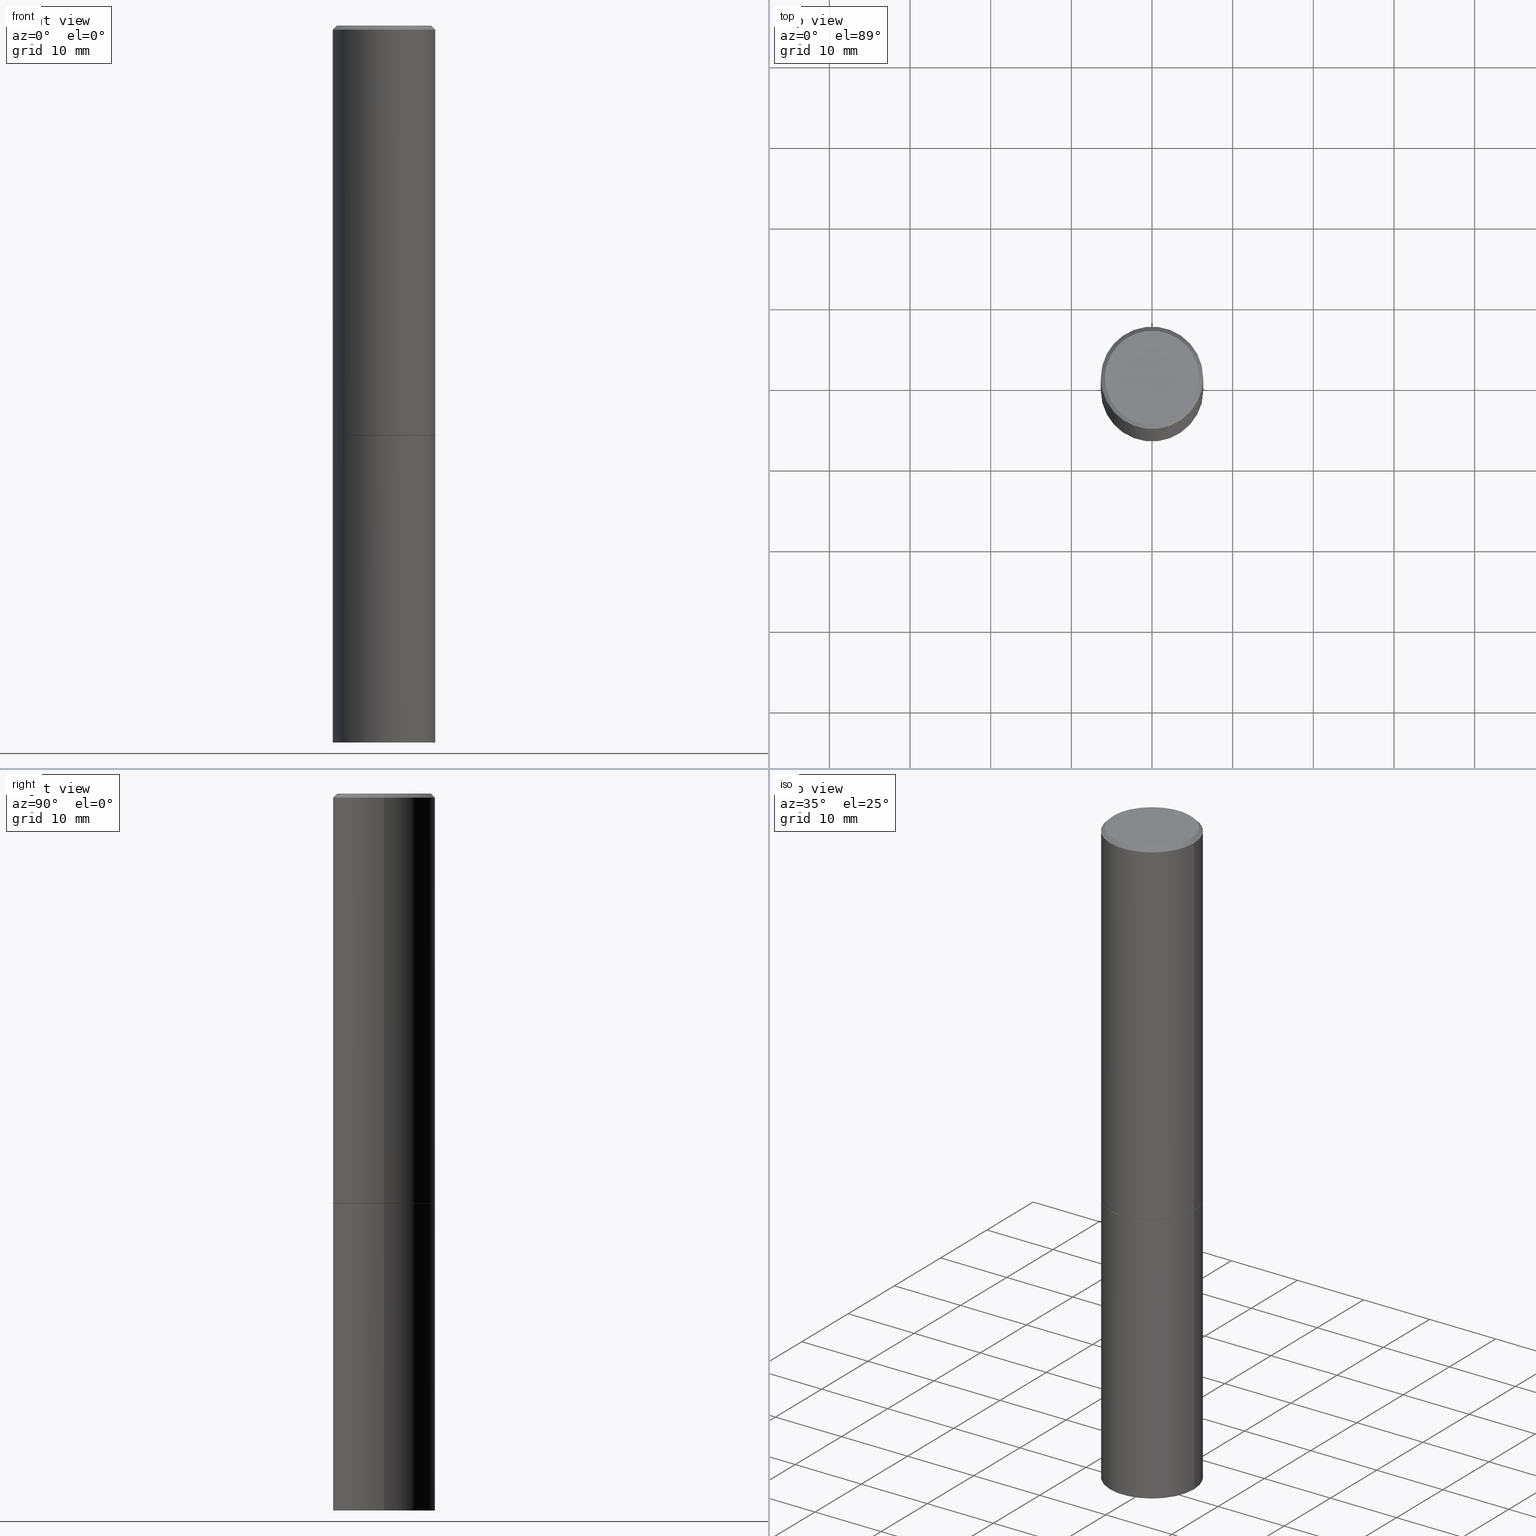
[diagram: canonical four-view strip — front | top / right | iso, engineering-drawing reading convention]
A machine part, canonical four-view strip (front | top / right | iso — engineering-drawing reading convention). The complete STEP part file that produces these views, byte-faithful:
ISO-10303-21;
HEADER;
FILE_DESCRIPTION (( 'STEP AP203' ),
    '1' );
FILE_NAME ('77186.STEP',
    '2024-02-29T15:58:51',
    ( '' ),
    ( '' ),
    'SwSTEP 2.0',
    'SolidWorks 2023',
    '' );
FILE_SCHEMA (( 'CONFIG_CONTROL_DESIGN' ));
ENDSEC;

DATA;
#1 = CC_DESIGN_PERSON_AND_ORGANIZATION_ASSIGNMENT ( #333, #346, ( #242 ) ) ;
#2 = UNCERTAINTY_MEASURE_WITH_UNIT (LENGTH_MEASURE( 1.000000000000000082E-05 ), #115, 'distance_accuracy_value', 'NONE');
#3 = EDGE_CURVE ( 'NONE', #189, #167, #10, .T. ) ;
#4 = DIRECTION ( 'NONE',  ( 1.000000000000000000, -6.982962677686266711E-15, 4.876176775795935793E-29 ) ) ;
#5 = ORIENTED_EDGE ( 'NONE', *, *, #41, .F. ) ;
#6 = ADVANCED_BREP_SHAPE_REPRESENTATION ( '77186', ( #78, #201, #323 ), #145 ) ;
#7 = CARTESIAN_POINT ( 'NONE',  ( 8.559140821647976968E-29, -1.222018468595100934E-14, -3.500000000000000000 ) ) ;
#8 = ORIENTED_EDGE ( 'NONE', *, *, #98, .T. ) ;
#9 = CARTESIAN_POINT ( 'NONE',  ( 4.890937612370272633E-29, -6.982962677686290376E-15, -1.999999999999999778 ) ) ;
#10 = LINE ( 'NONE', #275, #133 ) ;
#11 = CARTESIAN_POINT ( 'NONE',  ( 4.890937612370272633E-29, -6.982962677686290376E-15, -1.999999999999999778 ) ) ;
#12 = DIRECTION ( 'NONE',  ( -2.445468806185136597E-29, 3.491481338843145583E-15, 1.000000000000000000 ) ) ;
#13 = ADVANCED_FACE ( 'NONE', ( #319 ), #65, .T. ) ;
#14 = DIRECTION ( 'NONE',  ( -2.445468806185136877E-29, 3.491481338843145188E-15, 1.000000000000000000 ) ) ;
#15 = DIRECTION ( 'NONE',  ( -2.445468806185136597E-29, 3.491481338843145583E-15, 1.000000000000000000 ) ) ;
#16 = CARTESIAN_POINT ( 'NONE',  ( -0.2489999999999999991, -5.213711265643640920E-15, -1.999999999999999778 ) ) ;
#17 = PERSON_AND_ORGANIZATION ( #146, #135 ) ;
#18 = APPROVAL_PERSON_ORGANIZATION ( #112, #302, #200 ) ;
#19 = VERTEX_POINT ( 'NONE', #163 ) ;
#20 = PERSON_AND_ORGANIZATION_ROLE ( 'design_supplier' ) ;
#21 = DIRECTION ( 'NONE',  ( -2.445468806185136597E-29, 3.491481338843145583E-15, 1.000000000000000000 ) ) ;
#22 = EDGE_LOOP ( 'NONE', ( #104, #274, #108, #306 ) ) ;
#23 = LINE ( 'NONE', #105, #312 ) ;
#24 = APPROVAL_DATE_TIME ( #58, #302 ) ;
#25 = VECTOR ( 'NONE', #335, 39.37007874015748143 ) ;
#26 = DIRECTION ( 'NONE',  ( 0.000000000000000000, 0.000000000000000000, 1.000000000000000000 ) ) ;
#27 = CALENDAR_DATE ( 2024, 29, 2 ) ;
#28 = CARTESIAN_POINT ( 'NONE',  ( 0.2499999999999998057, -1.784954126219744611E-15, -0.02000000000000005593 ) ) ;
#29 = EDGE_LOOP ( 'NONE', ( #193, #290 ) ) ;
#30 = PERSON_AND_ORGANIZATION ( #146, #135 ) ;
#31 = SECURITY_CLASSIFICATION_LEVEL ( 'unclassified' ) ;
#32 = APPROVAL_ROLE ( '' ) ;
#33 = CIRCLE ( 'NONE', #347, 0.2500000000000000000 ) ;
#34 = APPROVAL_DATE_TIME ( #224, #248 ) ;
#35 = DIRECTION ( 'NONE',  ( 1.000000000000000000, -6.982962677686266711E-15, 4.876176775795935793E-29 ) ) ;
#36 = AXIS2_PLACEMENT_3D ( 'NONE', #365, #113, #338 ) ;
#37 = CARTESIAN_POINT ( 'NONE',  ( 4.890937612370287172E-31, -6.982962677686310098E-17, -0.02000000000000005593 ) ) ;
#38 = EDGE_CURVE ( 'NONE', #342, #194, #277, .T. ) ;
#39 = CALENDAR_DATE ( 2024, 29, 2 ) ;
#40 = CARTESIAN_POINT ( 'NONE',  ( 4.888492143564087591E-29, -6.979471196347447369E-15, -1.998999999999999888 ) ) ;
#41 = EDGE_CURVE ( 'NONE', #210, #194, #247, .T. ) ;
#42 = FACE_OUTER_BOUND ( 'NONE', #29, .T. ) ;
#43 = CARTESIAN_POINT ( 'NONE',  ( 4.890937612370287172E-31, -6.982962677686310098E-17, -0.02000000000000005593 ) ) ;
#44 = CIRCLE ( 'NONE', #159, 0.2299999999999997324 ) ;
#45 = CYLINDRICAL_SURFACE ( 'NONE', #263, 0.2500000000000000000 ) ;
#46 = DIRECTION ( 'NONE',  ( 1.000000000000000000, -6.982962677686266711E-15, 0.000000000000000000 ) ) ;
#47 = ADVANCED_FACE ( 'NONE', ( #42 ), #77, .F. ) ;
#48 = VECTOR ( 'NONE', #151, 39.37007874015748854 ) ;
#49 = DIRECTION ( 'NONE',  ( 1.000000000000000000, -6.982962677686266711E-15, 0.000000000000000000 ) ) ;
#50 = ORIENTED_EDGE ( 'NONE', *, *, #69, .T. ) ;
#51 = AXIS2_PLACEMENT_3D ( 'NONE', #101, #76, #46 ) ;
#52 = FACE_OUTER_BOUND ( 'NONE', #324, .T. ) ;
#53 = VERTEX_POINT ( 'NONE', #82 ) ;
#54 = CONICAL_SURFACE ( 'NONE', #281, 0.2499999999999998057, 0.7853981633974482790 ) ;
#55 = PERSON_AND_ORGANIZATION ( #146, #135 ) ;
#56 = ORIENTED_EDGE ( 'NONE', *, *, #336, .F. ) ;
#57 = DATE_AND_TIME ( #205, #225 ) ;
#58 = DATE_AND_TIME ( #27, #293 ) ;
#59 = DIRECTION ( 'NONE',  ( -2.445468806185136597E-29, 3.491481338843145583E-15, 1.000000000000000000 ) ) ;
#60 = APPROVAL_STATUS ( 'not_yet_approved' ) ;
#61 = VERTEX_POINT ( 'NONE', #118 ) ;
#62 = ADVANCED_FACE ( 'NONE', ( #289 ), #234, .T. ) ;
#63 = ORIENTED_EDGE ( 'NONE', *, *, #161, .T. ) ;
#64 = DIRECTION ( 'NONE',  ( -2.445468806185136597E-29, 3.491481338843145583E-15, 1.000000000000000000 ) ) ;
#65 = PLANE ( 'NONE',  #170 ) ;
#66 = EDGE_CURVE ( 'NONE', #19, #342, #284, .T. ) ;
#67 = LOCAL_TIME ( 10, 58, 51.00000000000000000, #288 ) ;
#68 = CARTESIAN_POINT ( 'NONE',  ( -0.2500000000000000000, -1.748293572161903489E-15, -1.998999999999999888 ) ) ;
#69 = EDGE_CURVE ( 'NONE', #240, #53, #154, .T. ) ;
#70 = CARTESIAN_POINT ( 'NONE',  ( -1.043851414335219820E-46, 1.490343170380447200E-32, 4.268512490100411279E-18 ) ) ;
#71 = CARTESIAN_POINT ( 'NONE',  ( 4.890937612370287172E-31, -6.982962677686310098E-17, -0.02000000000000005593 ) ) ;
#72 = CARTESIAN_POINT ( 'NONE',  ( -0.2499999999999998057, 1.675911042644702196E-15, -0.02000000000000005593 ) ) ;
#73 = VECTOR ( 'NONE', #14, 39.37007874015748143 ) ;
#74 = DIRECTION ( 'NONE',  ( 1.000000000000000000, -6.982962677686265922E-15, 4.876176775795935793E-29 ) ) ;
#75 = APPLICATION_CONTEXT ( 'configuration controlled 3d designs of mechanical parts and assemblies' ) ;
#76 = DIRECTION ( 'NONE',  ( -2.445468806185136597E-29, 3.491481338843145583E-15, 1.000000000000000000 ) ) ;
#77 = PLANE ( 'NONE',  #208 ) ;
#78 = MANIFOLD_SOLID_BREP ( 'Body-Move/Copy2[1]', #94 ) ;
#79 = ADVANCED_FACE ( 'NONE', ( #327 ), #54, .T. ) ;
#80 = DIRECTION ( 'NONE',  ( -2.445468806185136877E-29, 3.491481338843145188E-15, 1.000000000000000000 ) ) ;
#81 = PLANE ( 'NONE',  #36 ) ;
#82 = CARTESIAN_POINT ( 'NONE',  ( 0.2500000000000000000, -8.728703347107857054E-15, -2.000000000000000000 ) ) ;
#83 = COORDINATED_UNIVERSAL_TIME_OFFSET ( 5, 0, .BEHIND. ) ;
#84 = CARTESIAN_POINT ( 'NONE',  ( 4.890937612370272633E-29, -6.982962677686290376E-15, -1.999999999999999778 ) ) ;
#85 = AXIS2_PLACEMENT_3D ( 'NONE', #276, #59, #282 ) ;
#86 =( LENGTH_UNIT ( ) NAMED_UNIT ( * ) SI_UNIT ( $, .METRE. ) );
#87 = ORIENTED_EDGE ( 'NONE', *, *, #257, .T. ) ;
#88 = ORIENTED_EDGE ( 'NONE', *, *, #107, .T. ) ;
#89 = CIRCLE ( 'NONE', #51, 0.2500000000000000000 ) ;
#90 = ORIENTED_EDGE ( 'NONE', *, *, #298, .T. ) ;
#91 = FACE_OUTER_BOUND ( 'NONE', #348, .T. ) ;
#92 = EDGE_LOOP ( 'NONE', ( #103, #157 ) ) ;
#93 = DIRECTION ( 'NONE',  ( -2.445468806185136597E-29, 3.491481338843145583E-15, 1.000000000000000000 ) ) ;
#94 = CLOSED_SHELL ( 'NONE', ( #62, #13, #308, #128 ) ) ;
#95 = DIRECTION ( 'NONE',  ( 2.438088387897960049E-29, -3.491481338843145188E-15, -1.000000000000000000 ) ) ;
#96 = CIRCLE ( 'NONE', #202, 0.2499999999999998057 ) ;
#97 = FACE_OUTER_BOUND ( 'NONE', #213, .T. ) ;
#98 = EDGE_CURVE ( 'NONE', #240, #189, #33, .T. ) ;
#99 = DIRECTION ( 'NONE',  ( -2.445468806185136597E-29, 3.491481338843145583E-15, 1.000000000000000000 ) ) ;
#100 = CARTESIAN_POINT ( 'NONE',  ( 4.888492143564087591E-29, -6.979471196347447369E-15, -1.998999999999999888 ) ) ;
#101 = CARTESIAN_POINT ( 'NONE',  ( 4.890937612370273194E-29, -6.982962677686291165E-15, -2.000000000000000000 ) ) ;
#102 = CONICAL_SURFACE ( 'NONE', #140, 0.2489999999999999991, 0.7853981633975507526 ) ;
#103 = ORIENTED_EDGE ( 'NONE', *, *, #107, .F. ) ;
#104 = ORIENTED_EDGE ( 'NONE', *, *, #199, .T. ) ;
#105 = CARTESIAN_POINT ( 'NONE',  ( 0.2499999999999998890, -1.745740669421565889E-15, 1.219044193948983388E-29 ) ) ;
#106 = ORIENTED_EDGE ( 'NONE', *, *, #257, .F. ) ;
#107 = EDGE_CURVE ( 'NONE', #125, #61, #171, .T. ) ;
#108 = ORIENTED_EDGE ( 'NONE', *, *, #38, .F. ) ;
#109 = EDGE_CURVE ( 'NONE', #210, #236, #116, .T. ) ;
#110 = CARTESIAN_POINT ( 'NONE',  ( -0.2299999999999997324, 1.640996229256270744E-15, 4.268512490089056766E-18 ) ) ;
#111 = DIRECTION ( 'NONE',  ( 2.438088387897960049E-29, -3.491481338843145188E-15, -1.000000000000000000 ) ) ;
#112 = PERSON_AND_ORGANIZATION ( #146, #135 ) ;
#113 = DIRECTION ( 'NONE',  ( 2.438088387897960049E-29, -3.491481338843145188E-15, -1.000000000000000000 ) ) ;
#114 = DATE_TIME_ROLE ( 'classification_date' ) ;
#115 =( CONVERSION_BASED_UNIT ( 'INCH', #260 ) LENGTH_UNIT ( ) NAMED_UNIT ( #322 ) );
#116 = CIRCLE ( 'NONE', #188, 0.2500000000000000000 ) ;
#117 = ORIENTED_EDGE ( 'NONE', *, *, #317, .T. ) ;
#118 = CARTESIAN_POINT ( 'NONE',  ( -0.2489999999999999991, -5.208412811295418518E-15, -1.999999999999999778 ) ) ;
#119 = DIRECTION ( 'NONE',  ( 1.000000000000000000, 0.000000000000000000, 0.000000000000000000 ) ) ;
#120 = ORIENTED_EDGE ( 'NONE', *, *, #141, .F. ) ;
#121 = EDGE_CURVE ( 'NONE', #303, #194, #191, .T. ) ;
#122 = PERSON_AND_ORGANIZATION_ROLE ( 'creator' ) ;
#123 = CC_DESIGN_PERSON_AND_ORGANIZATION_ASSIGNMENT ( #314, #122, ( #265 ) ) ;
#124 = CLOSED_SHELL ( 'NONE', ( #206, #155, #79, #216, #192, #256, #239, #47 ) ) ;
#125 = VERTEX_POINT ( 'NONE', #211 ) ;
#126 = AXIS2_PLACEMENT_3D ( 'NONE', #299, #330, #74 ) ;
#127 = DIRECTION ( 'NONE',  ( -2.445468806185136597E-29, 3.491481338843145583E-15, 1.000000000000000000 ) ) ;
#128 = ADVANCED_FACE ( 'NONE', ( #91 ), #45, .T. ) ;
#129 = CARTESIAN_POINT ( 'NONE',  ( 8.559140821647976968E-29, -1.222018468595100934E-14, -3.500000000000000000 ) ) ;
#130 = CARTESIAN_POINT ( 'NONE',  ( 1.745740669421652072E-15, 0.2499999999999877598, -3.500000000000000888 ) ) ;
#131 = APPLICATION_CONTEXT ( 'configuration controlled 3d designs of mechanical parts and assemblies' ) ;
#132 = CARTESIAN_POINT ( 'NONE',  ( -0.2499999999999998057, 1.675911042644702196E-15, -0.02000000000000005593 ) ) ;
#133 = VECTOR ( 'NONE', #250, 39.37007874015748143 ) ;
#134 = DIRECTION ( 'NONE',  ( 1.000000000000000000, -6.982962677686266711E-15, 0.000000000000000000 ) ) ;
#135 = ORGANIZATION ( 'UNSPECIFIED', 'UNSPECIFIED', '' ) ;
#136 = DIRECTION ( 'NONE',  ( 1.000000000000000000, -6.982962677686266711E-15, 4.876176775795935793E-29 ) ) ;
#137 = DIRECTION ( 'NONE',  ( -2.445468806185136597E-29, 3.491481338843145583E-15, 1.000000000000000000 ) ) ;
#138 = CARTESIAN_POINT ( 'NONE',  ( -1.043851414335219820E-46, 1.490343170380447200E-32, 4.268512490100411279E-18 ) ) ;
#139 = AXIS2_PLACEMENT_3D ( 'NONE', #7, #137, #220 ) ;
#140 = AXIS2_PLACEMENT_3D ( 'NONE', #84, #143, #310 ) ;
#141 = EDGE_CURVE ( 'NONE', #194, #342, #96, .T. ) ;
#142 = FACE_OUTER_BOUND ( 'NONE', #182, .T. ) ;
#143 = DIRECTION ( 'NONE',  ( -2.445468806185136597E-29, 3.491481338843145583E-15, 1.000000000000000000 ) ) ;
#144 = ORIENTED_EDGE ( 'NONE', *, *, #161, .F. ) ;
#145 =( GEOMETRIC_REPRESENTATION_CONTEXT ( 3 ) GLOBAL_UNCERTAINTY_ASSIGNED_CONTEXT ( ( #2 ) ) GLOBAL_UNIT_ASSIGNED_CONTEXT ( ( #115, #232, #267 ) ) REPRESENTATION_CONTEXT ( 'NONE', 'WORKASPACE' ) );
#146 = PERSON ( 'UNSPECIFIED', 'UNSPECIFIED', 'UNSPECIFIED', ('UNSPECIFIED'), ('UNSPECIFIED'), ('UNSPECIFIED') ) ;
#147 = PERSON_AND_ORGANIZATION_ROLE ( 'design_owner' ) ;
#148 = ORIENTED_EDGE ( 'NONE', *, *, #245, .T. ) ;
#149 = SHAPE_DEFINITION_REPRESENTATION ( #270, #6 ) ;
#150 = APPROVAL_STATUS ( 'not_yet_approved' ) ;
#151 = DIRECTION ( 'NONE',  ( 0.7071067811865474617, -7.319954787623256045E-15, -0.7071067811865474617 ) ) ;
#152 = CALENDAR_DATE ( 2024, 29, 2 ) ;
#153 = EDGE_LOOP ( 'NONE', ( #8, #173, #174, #197 ) ) ;
#154 = LINE ( 'NONE', #237, #73 ) ;
#155 = ADVANCED_FACE ( 'NONE', ( #355 ), #292, .T. ) ;
#156 = DATE_TIME_ROLE ( 'creation_date' ) ;
#157 = ORIENTED_EDGE ( 'NONE', *, *, #298, .F. ) ;
#158 = AXIS2_PLACEMENT_3D ( 'NONE', #70, #93, #244 ) ;
#159 = AXIS2_PLACEMENT_3D ( 'NONE', #138, #253, #358 ) ;
#160 = CARTESIAN_POINT ( 'NONE',  ( -0.2500000000000000000, -7.825216842418399394E-15, -3.500000000000000000 ) ) ;
#161 = EDGE_CURVE ( 'NONE', #189, #240, #223, .T. ) ;
#162 = CARTESIAN_POINT ( 'NONE',  ( 0.000000000000000000, 0.000000000000000000, 0.000000000000000000 ) ) ;
#163 = CARTESIAN_POINT ( 'NONE',  ( 0.2299999999999997324, -1.681434332853597433E-15, 4.268512490111905999E-18 ) ) ;
#164 = ORIENTED_EDGE ( 'NONE', *, *, #98, .F. ) ;
#165 = DIRECTION ( 'NONE',  ( -2.445468806185136597E-29, 3.491481338843145583E-15, 1.000000000000000000 ) ) ;
#166 = CARTESIAN_POINT ( 'NONE',  ( 0.000000000000000000, 0.000000000000000000, 0.000000000000000000 ) ) ;
#167 = VERTEX_POINT ( 'NONE', #252 ) ;
#168 = AXIS2_PLACEMENT_3D ( 'NONE', #11, #184, #296 ) ;
#169 = DIRECTION ( 'NONE',  ( -0.7071067811866199593, 7.493145998870616062E-15, 0.7071067811864750752 ) ) ;
#170 = AXIS2_PLACEMENT_3D ( 'NONE', #130, #95, #215 ) ;
#171 = CIRCLE ( 'NONE', #168, 0.2489999999999999991 ) ;
#172 = DIRECTION ( 'NONE',  ( -2.445468806185136597E-29, 3.491481338843145583E-15, 1.000000000000000000 ) ) ;
#173 = ORIENTED_EDGE ( 'NONE', *, *, #3, .T. ) ;
#174 = ORIENTED_EDGE ( 'NONE', *, *, #317, .F. ) ;
#175 = CC_DESIGN_DATE_AND_TIME_ASSIGNMENT ( #230, #114, ( #235 ) ) ;
#176 = ORIENTED_EDGE ( 'NONE', *, *, #66, .F. ) ;
#177 = ORIENTED_EDGE ( 'NONE', *, *, #336, .T. ) ;
#178 = CALENDAR_DATE ( 2024, 29, 2 ) ;
#179 = DIRECTION ( 'NONE',  ( 1.000000000000000000, -6.982962677686266711E-15, 0.000000000000000000 ) ) ;
#180 = CIRCLE ( 'NONE', #357, 0.2500000000000000000 ) ;
#181 = VECTOR ( 'NONE', #169, 39.37007874015748143 ) ;
#182 = EDGE_LOOP ( 'NONE', ( #117, #177 ) ) ;
#183 = FACE_OUTER_BOUND ( 'NONE', #304, .T. ) ;
#184 = DIRECTION ( 'NONE',  ( -2.445468806185136597E-29, 3.491481338843145583E-15, 1.000000000000000000 ) ) ;
#185 = EDGE_CURVE ( 'NONE', #303, #19, #305, .T. ) ;
#186 = PLANE ( 'NONE',  #126 ) ;
#187 = APPROVAL ( #150, 'UNSPECIFIED' ) ;
#188 = AXIS2_PLACEMENT_3D ( 'NONE', #100, #165, #179 ) ;
#189 = VERTEX_POINT ( 'NONE', #160 ) ;
#190 = AXIS2_PLACEMENT_3D ( 'NONE', #332, #21, #49 ) ;
#191 = LINE ( 'NONE', #132, #254 ) ;
#192 = ADVANCED_FACE ( 'NONE', ( #329 ), #356, .T. ) ;
#193 = ORIENTED_EDGE ( 'NONE', *, *, #185, .T. ) ;
#194 = VERTEX_POINT ( 'NONE', #72 ) ;
#195 = PERSON_AND_ORGANIZATION_ROLE ( 'classification_officer' ) ;
#196 = CIRCLE ( 'NONE', #190, 0.2489999999999999991 ) ;
#197 = ORIENTED_EDGE ( 'NONE', *, *, #69, .F. ) ;
#198 = ORIENTED_EDGE ( 'NONE', *, *, #315, .F. ) ;
#199 = EDGE_CURVE ( 'NONE', #236, #210, #180, .T. ) ;
#200 = APPROVAL_ROLE ( '' ) ;
#201 = MANIFOLD_SOLID_BREP ( 'Body-Move/Copy2[2]', #124 ) ;
#202 = AXIS2_PLACEMENT_3D ( 'NONE', #43, #15, #249 ) ;
#203 = APPLICATION_PROTOCOL_DEFINITION ( 'international standard', 'config_control_design', 1994, #75 ) ;
#204 = CARTESIAN_POINT ( 'NONE',  ( 0.000000000000000000, 0.000000000000000000, 0.000000000000000000 ) ) ;
#205 = CALENDAR_DATE ( 2024, 29, 2 ) ;
#206 = ADVANCED_FACE ( 'NONE', ( #97 ), #278, .T. ) ;
#207 = ORIENTED_EDGE ( 'NONE', *, *, #121, .F. ) ;
#208 = AXIS2_PLACEMENT_3D ( 'NONE', #280, #111, #337 ) ;
#209 = LOCAL_TIME ( 10, 58, 51.00000000000000000, #286 ) ;
#210 = VERTEX_POINT ( 'NONE', #68 ) ;
#211 = CARTESIAN_POINT ( 'NONE',  ( 0.2489999999999999991, -8.721720384430171040E-15, -1.999999999999999778 ) ) ;
#212 = ORIENTED_EDGE ( 'NONE', *, *, #109, .T. ) ;
#213 = EDGE_LOOP ( 'NONE', ( #88, #87, #340, #366 ) ) ;
#214 = DIRECTION ( 'NONE',  ( -2.445468806185136597E-29, 3.491481338843145583E-15, 1.000000000000000000 ) ) ;
#215 = DIRECTION ( 'NONE',  ( -1.000000000000000000, 6.982962677686265922E-15, -4.876176775795935793E-29 ) ) ;
#216 = ADVANCED_FACE ( 'NONE', ( #183 ), #300, .T. ) ;
#217 = ORIENTED_EDGE ( 'NONE', *, *, #109, .F. ) ;
#218 = DIRECTION ( 'NONE',  ( -1.000000000000000000, 6.982962677686266711E-15, 0.000000000000000000 ) ) ;
#219 = EDGE_LOOP ( 'NONE', ( #5, #212, #148, #120 ) ) ;
#220 = DIRECTION ( 'NONE',  ( 1.000000000000000000, -6.982962677686270655E-15, 0.000000000000000000 ) ) ;
#221 = CARTESIAN_POINT ( 'NONE',  ( -0.2499999999999998890, 1.776356839400249676E-15, -1.229733772563726025E-29 ) ) ;
#222 = FACE_OUTER_BOUND ( 'NONE', #92, .T. ) ;
#223 = CIRCLE ( 'NONE', #139, 0.2500000000000000000 ) ;
#224 = DATE_AND_TIME ( #178, #349 ) ;
#225 = LOCAL_TIME ( 10, 58, 51.00000000000000000, #341 ) ;
#226 = LINE ( 'NONE', #16, #181 ) ;
#227 = EDGE_LOOP ( 'NONE', ( #164, #144 ) ) ;
#228 = ORIENTED_EDGE ( 'NONE', *, *, #141, .T. ) ;
#229 = AXIS2_PLACEMENT_3D ( 'NONE', #71, #12, #134 ) ;
#230 = DATE_AND_TIME ( #39, #67 ) ;
#231 = DESIGN_CONTEXT ( 'detailed design', #75, 'design' ) ;
#232 =( NAMED_UNIT ( * ) PLANE_ANGLE_UNIT ( ) SI_UNIT ( $, .RADIAN. ) );
#233 = AXIS2_PLACEMENT_3D ( 'NONE', #204, #172, #4 ) ;
#234 = CYLINDRICAL_SURFACE ( 'NONE', #233, 0.2500000000000000000 ) ;
#235 = SECURITY_CLASSIFICATION ( '', '', #31 ) ;
#236 = VERTEX_POINT ( 'NONE', #272 ) ;
#237 = CARTESIAN_POINT ( 'NONE',  ( 0.2500000000000000000, -1.745740669421566678E-15, 1.219044193948983948E-29 ) ) ;
#238 = APPROVAL_DATE_TIME ( #57, #187 ) ;
#239 = ADVANCED_FACE ( 'NONE', ( #222 ), #186, .F. ) ;
#240 = VERTEX_POINT ( 'NONE', #362 ) ;
#241 = MECHANICAL_CONTEXT ( 'NONE', #131, 'mechanical' ) ;
#242 = PRODUCT_DEFINITION_FORMATION_WITH_SPECIFIED_SOURCE ( 'ANY', '', #328, .NOT_KNOWN. ) ;
#243 = DIRECTION ( 'NONE',  ( -2.445468806185136597E-29, 3.491481338843145583E-15, 1.000000000000000000 ) ) ;
#244 = DIRECTION ( 'NONE',  ( 1.000000000000000000, -6.982962677686266711E-15, 4.876225828469314487E-29 ) ) ;
#245 = EDGE_CURVE ( 'NONE', #236, #342, #23, .T. ) ;
#246 = DIRECTION ( 'NONE',  ( 1.000000000000000000, -6.982962677686266711E-15, 4.876176775795935793E-29 ) ) ;
#247 = LINE ( 'NONE', #221, #364 ) ;
#248 = APPROVAL ( #345, 'UNSPECIFIED' ) ;
#249 = DIRECTION ( 'NONE',  ( 1.000000000000000000, -6.982962677686266711E-15, 0.000000000000000000 ) ) ;
#250 = DIRECTION ( 'NONE',  ( -2.445468806185136877E-29, 3.491481338843145188E-15, 1.000000000000000000 ) ) ;
#251 = PERSON_AND_ORGANIZATION ( #146, #135 ) ;
#252 = CARTESIAN_POINT ( 'NONE',  ( -0.2500000000000000000, -7.825216842418399394E-15, -2.000000000000000000 ) ) ;
#253 = DIRECTION ( 'NONE',  ( -2.445468806185136597E-29, 3.491481338843145583E-15, 1.000000000000000000 ) ) ;
#254 = VECTOR ( 'NONE', #301, 39.37007874015748854 ) ;
#255 = CC_DESIGN_APPROVAL ( #187, ( #265 ) ) ;
#256 = ADVANCED_FACE ( 'NONE', ( #52 ), #102, .T. ) ;
#257 = EDGE_CURVE ( 'NONE', #61, #210, #226, .T. ) ;
#258 = AXIS2_PLACEMENT_3D ( 'NONE', #37, #353, #218 ) ;
#259 = ORIENTED_EDGE ( 'NONE', *, *, #313, .T. ) ;
#260 = LENGTH_MEASURE_WITH_UNIT ( LENGTH_MEASURE( 0.02539999999999999897 ), #86 );
#261 = APPROVAL_ROLE ( '' ) ;
#262 = ORIENTED_EDGE ( 'NONE', *, *, #66, .T. ) ;
#263 = AXIS2_PLACEMENT_3D ( 'NONE', #273, #99, #136 ) ;
#264 = DATE_AND_TIME ( #152, #209 ) ;
#265 = PRODUCT_DEFINITION ( 'UNKNOWN', '', #242, #231 ) ;
#266 = PERSON_AND_ORGANIZATION ( #146, #135 ) ;
#267 =( NAMED_UNIT ( * ) SI_UNIT ( $, .STERADIAN. ) SOLID_ANGLE_UNIT ( ) );
#268 = EDGE_LOOP ( 'NONE', ( #198, #262, #344, #207 ) ) ;
#269 = DIRECTION ( 'NONE',  ( -1.000000000000000000, 6.982962677686266711E-15, 0.000000000000000000 ) ) ;
#270 = PRODUCT_DEFINITION_SHAPE ( 'NONE', 'NONE',  #265 ) ;
#271 = DIRECTION ( 'NONE',  ( 2.445468806185136597E-29, -3.491481338843145583E-15, -1.000000000000000000 ) ) ;
#272 = CARTESIAN_POINT ( 'NONE',  ( 0.2500000000000000000, -8.725211865769014047E-15, -1.998999999999999888 ) ) ;
#273 = CARTESIAN_POINT ( 'NONE',  ( 0.000000000000000000, 0.000000000000000000, 0.000000000000000000 ) ) ;
#274 = ORIENTED_EDGE ( 'NONE', *, *, #41, .T. ) ;
#275 = CARTESIAN_POINT ( 'NONE',  ( -0.2500000000000000000, 1.776356839400250465E-15, -1.229733772563726445E-29 ) ) ;
#276 = CARTESIAN_POINT ( 'NONE',  ( 4.890937612370273194E-29, -6.982962677686291165E-15, -2.000000000000000000 ) ) ;
#277 = CIRCLE ( 'NONE', #229, 0.2499999999999998057 ) ;
#278 = CONICAL_SURFACE ( 'NONE', #320, 0.2489999999999999991, 0.7853981633975507526 ) ;
#279 = LINE ( 'NONE', #363, #25 ) ;
#280 = CARTESIAN_POINT ( 'NONE',  ( 1.606081415867839292E-15, 0.2299999999999997324, -8.009064516888723911E-16 ) ) ;
#281 = AXIS2_PLACEMENT_3D ( 'NONE', #318, #271, #269 ) ;
#282 = DIRECTION ( 'NONE',  ( 1.000000000000000000, -6.982962677686266711E-15, 0.000000000000000000 ) ) ;
#283 = CC_DESIGN_APPROVAL ( #302, ( #235 ) ) ;
#284 = LINE ( 'NONE', #28, #48 ) ;
#285 = CARTESIAN_POINT ( 'NONE',  ( 0.2499999999999998057, -1.784954126219744611E-15, -0.02000000000000005593 ) ) ;
#286 = COORDINATED_UNIVERSAL_TIME_OFFSET ( 5, 0, .BEHIND. ) ;
#287 = PRODUCT_RELATED_PRODUCT_CATEGORY ( 'detail', '', ( #328 ) ) ;
#288 = COORDINATED_UNIVERSAL_TIME_OFFSET ( 5, 0, .BEHIND. ) ;
#289 = FACE_OUTER_BOUND ( 'NONE', #153, .T. ) ;
#290 = ORIENTED_EDGE ( 'NONE', *, *, #315, .T. ) ;
#291 = AXIS2_PLACEMENT_3D ( 'NONE', #166, #64, #35 ) ;
#292 = CYLINDRICAL_SURFACE ( 'NONE', #291, 0.2499999999999998890 ) ;
#293 = LOCAL_TIME ( 10, 58, 51.00000000000000000, #83 ) ;
#294 = CC_DESIGN_PERSON_AND_ORGANIZATION_ASSIGNMENT ( #251, #195, ( #235 ) ) ;
#295 = DIRECTION ( 'NONE',  ( -2.445468806185136597E-29, 3.491481338843145583E-15, 1.000000000000000000 ) ) ;
#296 = DIRECTION ( 'NONE',  ( 1.000000000000000000, -6.982962677686266711E-15, 0.000000000000000000 ) ) ;
#297 = DIRECTION ( 'NONE',  ( -2.445468806185136877E-29, 3.491481338843145188E-15, 1.000000000000000000 ) ) ;
#298 = EDGE_CURVE ( 'NONE', #61, #125, #196, .T. ) ;
#299 = CARTESIAN_POINT ( 'NONE',  ( 4.890937612370272633E-29, -6.982962677686290376E-15, -1.999999999999999778 ) ) ;
#300 = CONICAL_SURFACE ( 'NONE', #258, 0.2499999999999998057, 0.7853981633974482790 ) ;
#301 = DIRECTION ( 'NONE',  ( -0.7071067811865474617, 2.468850131082256666E-15, -0.7071067811865474617 ) ) ;
#302 = APPROVAL ( #60, 'UNSPECIFIED' ) ;
#303 = VERTEX_POINT ( 'NONE', #110 ) ;
#304 = EDGE_LOOP ( 'NONE', ( #176, #309, #316, #228 ) ) ;
#305 = CIRCLE ( 'NONE', #158, 0.2299999999999997324 ) ;
#306 = ORIENTED_EDGE ( 'NONE', *, *, #245, .F. ) ;
#307 = CC_DESIGN_APPROVAL ( #248, ( #242 ) ) ;
#308 = ADVANCED_FACE ( 'NONE', ( #142 ), #81, .F. ) ;
#309 = ORIENTED_EDGE ( 'NONE', *, *, #185, .F. ) ;
#310 = DIRECTION ( 'NONE',  ( 1.000000000000000000, -6.982962677686266711E-15, 0.000000000000000000 ) ) ;
#311 = AXIS2_PLACEMENT_3D ( 'NONE', #162, #127, #246 ) ;
#312 = VECTOR ( 'NONE', #80, 39.37007874015748143 ) ;
#313 = EDGE_CURVE ( 'NONE', #125, #236, #279, .T. ) ;
#314 = PERSON_AND_ORGANIZATION ( #146, #135 ) ;
#315 = EDGE_CURVE ( 'NONE', #19, #303, #44, .T. ) ;
#316 = ORIENTED_EDGE ( 'NONE', *, *, #121, .T. ) ;
#317 = EDGE_CURVE ( 'NONE', #53, #167, #89, .T. ) ;
#318 = CARTESIAN_POINT ( 'NONE',  ( 4.890937612370287172E-31, -6.982962677686310098E-17, -0.02000000000000005593 ) ) ;
#319 = FACE_OUTER_BOUND ( 'NONE', #227, .T. ) ;
#320 = AXIS2_PLACEMENT_3D ( 'NONE', #9, #214, #321 ) ;
#321 = DIRECTION ( 'NONE',  ( 1.000000000000000000, -6.982962677686266711E-15, 0.000000000000000000 ) ) ;
#322 = DIMENSIONAL_EXPONENTS ( 1.000000000000000000, 0.000000000000000000, 0.000000000000000000, 0.000000000000000000, 0.000000000000000000, 0.000000000000000000, 0.000000000000000000 ) ;
#323 = AXIS2_PLACEMENT_3D ( 'NONE', #339, #26, #119 ) ;
#324 = EDGE_LOOP ( 'NONE', ( #106, #90, #259, #217 ) ) ;
#325 = CC_DESIGN_DATE_AND_TIME_ASSIGNMENT ( #264, #156, ( #265 ) ) ;
#326 = COORDINATED_UNIVERSAL_TIME_OFFSET ( 5, 0, .BEHIND. ) ;
#327 = FACE_OUTER_BOUND ( 'NONE', #268, .T. ) ;
#328 = PRODUCT ( '77186', '77186', '', ( #241 ) ) ;
#329 = FACE_OUTER_BOUND ( 'NONE', #219, .T. ) ;
#330 = DIRECTION ( 'NONE',  ( -2.438088387897960049E-29, 3.491481338843145188E-15, 1.000000000000000000 ) ) ;
#331 = CC_DESIGN_SECURITY_CLASSIFICATION ( #235, ( #242 ) ) ;
#332 = CARTESIAN_POINT ( 'NONE',  ( 4.890937612370272633E-29, -6.982962677686290376E-15, -1.999999999999999778 ) ) ;
#333 = PERSON_AND_ORGANIZATION ( #146, #135 ) ;
#334 = APPROVAL_PERSON_ORGANIZATION ( #55, #187, #261 ) ;
#335 = DIRECTION ( 'NONE',  ( 0.7071067811866199593, -2.468850131083015945E-15, 0.7071067811864750752 ) ) ;
#336 = EDGE_CURVE ( 'NONE', #167, #53, #359, .T. ) ;
#337 = DIRECTION ( 'NONE',  ( -1.000000000000000000, 6.982962677686265922E-15, -4.876176775795935793E-29 ) ) ;
#338 = DIRECTION ( 'NONE',  ( -1.000000000000000000, 6.982962677686265922E-15, -4.876176775795935793E-29 ) ) ;
#339 = CARTESIAN_POINT ( 'NONE',  ( 0.000000000000000000, 0.000000000000000000, 0.000000000000000000 ) ) ;
#340 = ORIENTED_EDGE ( 'NONE', *, *, #199, .F. ) ;
#341 = COORDINATED_UNIVERSAL_TIME_OFFSET ( 5, 0, .BEHIND. ) ;
#342 = VERTEX_POINT ( 'NONE', #285 ) ;
#343 = APPLICATION_PROTOCOL_DEFINITION ( 'international standard', 'config_control_design', 1994, #131 ) ;
#344 = ORIENTED_EDGE ( 'NONE', *, *, #38, .T. ) ;
#345 = APPROVAL_STATUS ( 'not_yet_approved' ) ;
#346 = PERSON_AND_ORGANIZATION_ROLE ( 'creator' ) ;
#347 = AXIS2_PLACEMENT_3D ( 'NONE', #129, #295, #351 ) ;
#348 = EDGE_LOOP ( 'NONE', ( #360, #63, #50, #56 ) ) ;
#349 = LOCAL_TIME ( 10, 58, 51.00000000000000000, #326 ) ;
#350 = DIRECTION ( 'NONE',  ( 1.000000000000000000, -6.982962677686266711E-15, 0.000000000000000000 ) ) ;
#351 = DIRECTION ( 'NONE',  ( 1.000000000000000000, -6.982962677686270655E-15, 0.000000000000000000 ) ) ;
#352 = CC_DESIGN_PERSON_AND_ORGANIZATION_ASSIGNMENT ( #30, #147, ( #328 ) ) ;
#353 = DIRECTION ( 'NONE',  ( 2.445468806185136597E-29, -3.491481338843145583E-15, -1.000000000000000000 ) ) ;
#354 = APPROVAL_PERSON_ORGANIZATION ( #266, #248, #32 ) ;
#355 = FACE_OUTER_BOUND ( 'NONE', #22, .T. ) ;
#356 = CYLINDRICAL_SURFACE ( 'NONE', #311, 0.2499999999999998890 ) ;
#357 = AXIS2_PLACEMENT_3D ( 'NONE', #40, #243, #350 ) ;
#358 = DIRECTION ( 'NONE',  ( 1.000000000000000000, -6.982962677686266711E-15, 4.876225828469314487E-29 ) ) ;
#359 = CIRCLE ( 'NONE', #85, 0.2500000000000000000 ) ;
#360 = ORIENTED_EDGE ( 'NONE', *, *, #3, .F. ) ;
#361 = CC_DESIGN_PERSON_AND_ORGANIZATION_ASSIGNMENT ( #17, #20, ( #242 ) ) ;
#362 = CARTESIAN_POINT ( 'NONE',  ( 0.2500000000000000000, -1.396592535537257602E-14, -3.500000000000000000 ) ) ;
#363 = CARTESIAN_POINT ( 'NONE',  ( 0.2489999999999999991, -8.721720384430171040E-15, -1.999999999999999778 ) ) ;
#364 = VECTOR ( 'NONE', #297, 39.37007874015748143 ) ;
#365 = CARTESIAN_POINT ( 'NONE',  ( 1.745740669421615390E-15, 0.2499999999999930334, -2.000000000000000888 ) ) ;
#366 = ORIENTED_EDGE ( 'NONE', *, *, #313, .F. ) ;
ENDSEC;
END-ISO-10303-21;
